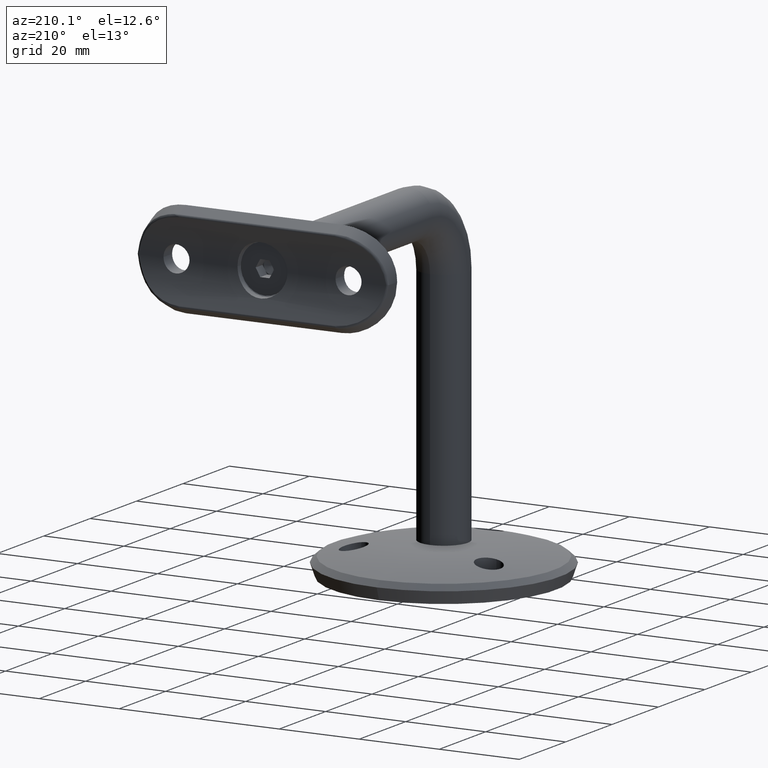
[diagram: clean part render]
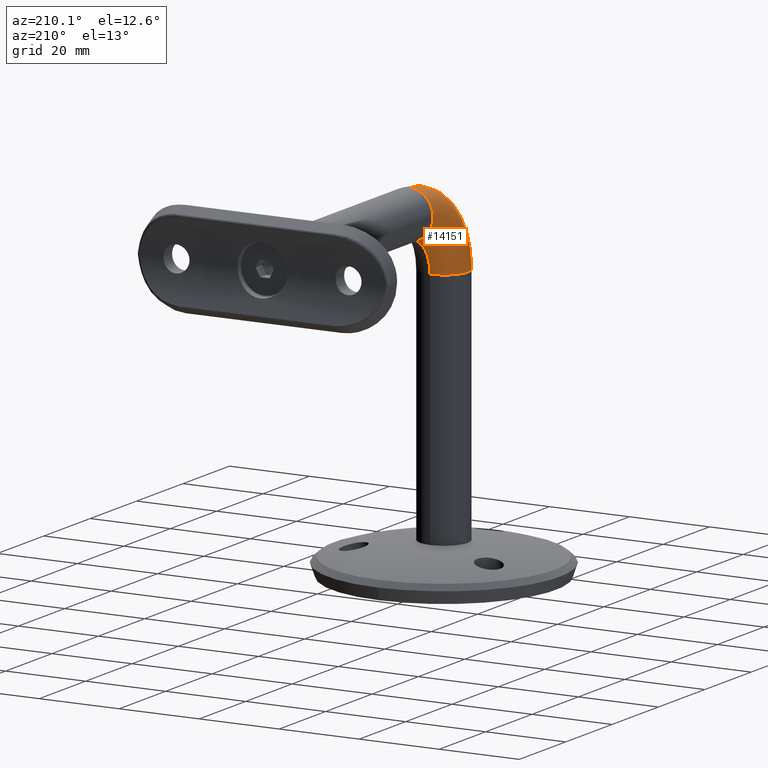
[diagram: same view with one face highlighted and labeled with its STEP entity id]
A machine part, auxiliary view. The second image highlights one B-rep face of the part: STEP entity #14151.
In plain terms, the highlighted toroidal blend (fillet) surface has major radius 15 mm and minor (blend) radius 6 mm.
Its self-contained STEP definition (entity closure, byte-faithful):
#366 = CARTESIAN_POINT ( 'NONE',  ( 0.000000000000000000, 14.99999999999999289, 60.00000000000001421 ) ) ;
#832 = EDGE_LOOP ( 'NONE', ( #16016, #8269, #6363, #12110 ) ) ;
#2678 = CARTESIAN_POINT ( 'NONE',  ( 0.000000000000000000, 14.99999999999999289, 81.00000000000001421 ) ) ;
#2856 = VERTEX_POINT ( 'NONE', #6716 ) ;
#2906 = CARTESIAN_POINT ( 'NONE',  ( 0.000000000000000000, 14.99999999999999289, 60.00000000000001421 ) ) ;
#3481 = TOROIDAL_SURFACE ( 'NONE', #12155, 15.00000000000000000, 6.000000000000000888 ) ;
#3567 = CIRCLE ( 'NONE', #8054, 21.00000000000000355 ) ;
#3577 = AXIS2_PLACEMENT_3D ( 'NONE', #7786, #7463, #6287 ) ;
#3899 = VERTEX_POINT ( 'NONE', #9913 ) ;
#4303 = DIRECTION ( 'NONE',  ( 0.000000000000000000, 0.000000000000000000, 1.000000000000000000 ) ) ;
#4373 = DIRECTION ( 'NONE',  ( -1.000000000000000000, -0.000000000000000000, 0.000000000000000000 ) ) ;
#5236 = VERTEX_POINT ( 'NONE', #11884 ) ;
#6235 = AXIS2_PLACEMENT_3D ( 'NONE', #11647, #14428, #10629 ) ;
#6287 = DIRECTION ( 'NONE',  ( 1.000000000000000000, 0.000000000000000000, 0.000000000000000000 ) ) ;
#6363 = ORIENTED_EDGE ( 'NONE', *, *, #9067, .F. ) ;
#6716 = CARTESIAN_POINT ( 'NONE',  ( 7.347880794884114806E-16, 14.99999999999999289, 69.00000000000000000 ) ) ;
#7463 = DIRECTION ( 'NONE',  ( 0.000000000000000000, 0.000000000000000000, 1.000000000000000000 ) ) ;
#7786 = CARTESIAN_POINT ( 'NONE',  ( 0.000000000000000000, -7.368981417143496624E-15, 60.00000000000001421 ) ) ;
#8054 = AXIS2_PLACEMENT_3D ( 'NONE', #2906, #4373, #9306 ) ;
#8269 = ORIENTED_EDGE ( 'NONE', *, *, #10185, .T. ) ;
#9067 = EDGE_CURVE ( 'NONE', #2856, #10601, #9187, .T. ) ;
#9187 = CIRCLE ( 'NONE', #6235, 6.000000000000000888 ) ;
#9306 = DIRECTION ( 'NONE',  ( 0.000000000000000000, 0.000000000000000000, 1.000000000000000000 ) ) ;
#9905 = FACE_OUTER_BOUND ( 'NONE', #832, .T. ) ;
#9913 = CARTESIAN_POINT ( 'NONE',  ( 7.347880794884120722E-16, 5.999999999999993783, 60.00000000000001421 ) ) ;
#10017 = AXIS2_PLACEMENT_3D ( 'NONE', #10612, #13986, #16583 ) ;
#10185 = EDGE_CURVE ( 'NONE', #5236, #10601, #3567, .T. ) ;
#10277 = CIRCLE ( 'NONE', #3577, 6.000000000000000888 ) ;
#10601 = VERTEX_POINT ( 'NONE', #2678 ) ;
#10612 = CARTESIAN_POINT ( 'NONE',  ( 7.347880794884120722E-16, 14.99999999999999289, 60.00000000000001421 ) ) ;
#10629 = DIRECTION ( 'NONE',  ( 1.000000000000000000, 0.000000000000000000, 0.000000000000000000 ) ) ;
#11647 = CARTESIAN_POINT ( 'NONE',  ( 0.000000000000000000, 14.99999999999999289, 75.00000000000001421 ) ) ;
#11884 = CARTESIAN_POINT ( 'NONE',  ( 0.000000000000000000, -6.000000000000008882, 60.00000000000001421 ) ) ;
#12110 = ORIENTED_EDGE ( 'NONE', *, *, #12969, .F. ) ;
#12155 = AXIS2_PLACEMENT_3D ( 'NONE', #366, #14421, #4303 ) ;
#12969 = EDGE_CURVE ( 'NONE', #3899, #2856, #15685, .T. ) ;
#13986 = DIRECTION ( 'NONE',  ( -1.000000000000000000, -0.000000000000000000, 0.000000000000000000 ) ) ;
#14151 = ADVANCED_FACE ( 'NONE', ( #9905 ), #3481, .T. ) ;
#14421 = DIRECTION ( 'NONE',  ( -1.000000000000000000, -0.000000000000000000, 0.000000000000000000 ) ) ;
#14428 = DIRECTION ( 'NONE',  ( 0.000000000000000000, 1.000000000000000000, -1.228163569523915759E-16 ) ) ;
#14936 = EDGE_CURVE ( 'NONE', #3899, #5236, #10277, .T. ) ;
#15685 = CIRCLE ( 'NONE', #10017, 8.999999999999994671 ) ;
#16016 = ORIENTED_EDGE ( 'NONE', *, *, #14936, .T. ) ;
#16583 = DIRECTION ( 'NONE',  ( 0.000000000000000000, 0.000000000000000000, 1.000000000000000000 ) ) ;